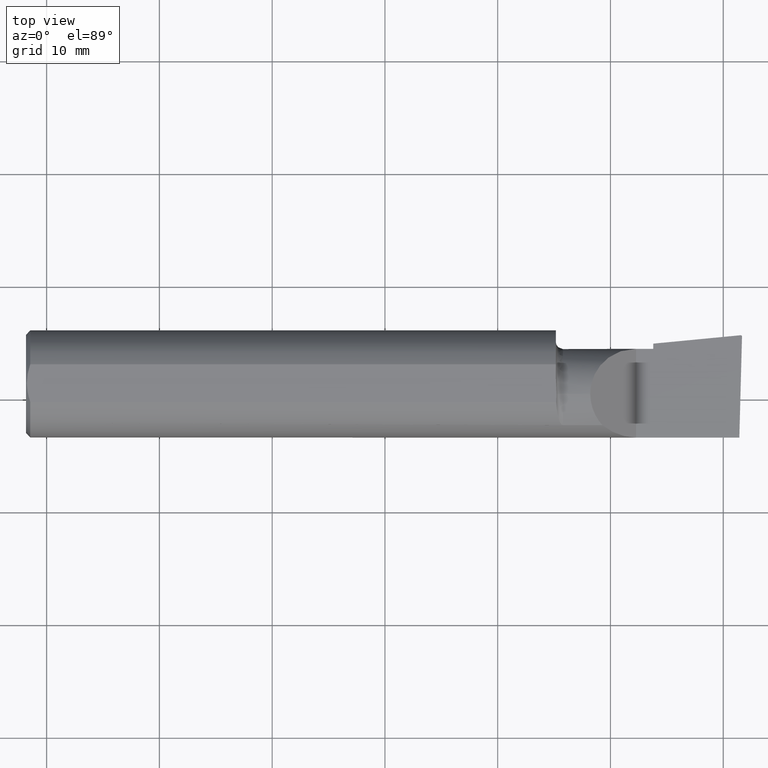
[diagram: clean part render]
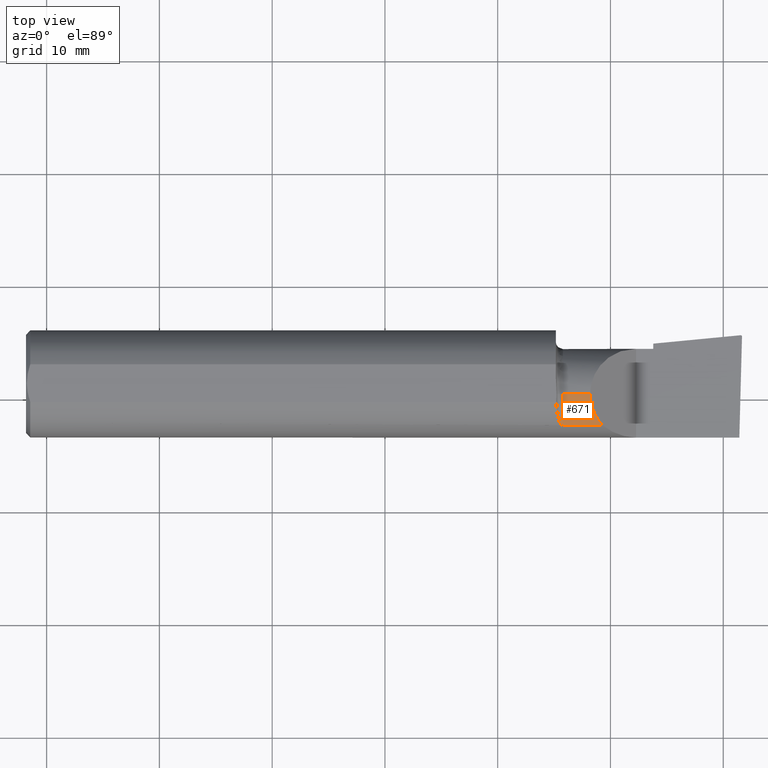
[diagram: same view with one face highlighted and labeled with its STEP entity id]
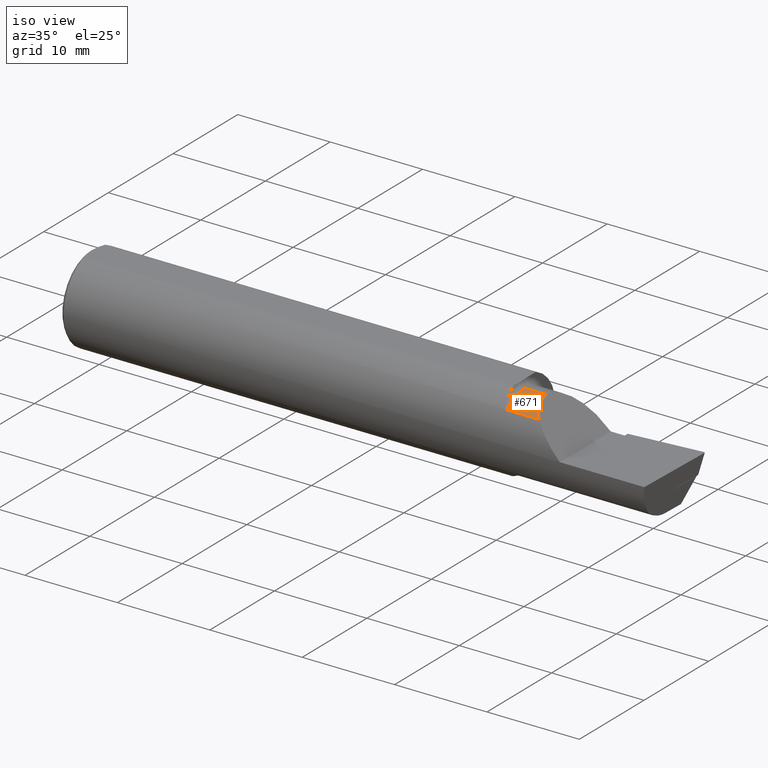
[diagram: same view with one face highlighted and labeled with its STEP entity id]
A machine part, top view. The second image highlights one B-rep face of the part: STEP entity #671.
A second angle (iso view) of the same face is appended — the face is thin or edge-on in the first view.
In plain terms, the highlighted cylindrical surface (partial cylindrical patch) has radius 4.064 mm, axis along (-1, -0, -0).
Its self-contained STEP definition (entity closure, byte-faithful):
#9 = CARTESIAN_POINT ( 'NONE',  ( 1.875000000000000000, -0.1458506693440427548, 0.1175908361731248797 ) ) ;
#26 = CARTESIAN_POINT ( 'NONE',  ( 1.850000000000000311, -0.03734999999999999432, 0.000000000000000000 ) ) ;
#66 = EDGE_CURVE ( 'NONE', #854, #476, #115, .T. ) ;
#115 = LINE ( 'NONE', #778, #901 ) ;
#150 = ORIENTED_EDGE ( 'NONE', *, *, #416, .T. ) ;
#187 = DIRECTION ( 'NONE',  ( -1.000000000000000000, -0.000000000000000000, -0.000000000000000000 ) ) ;
#261 = VECTOR ( 'NONE', #187, 39.37007874015748143 ) ;
#288 = CARTESIAN_POINT ( 'NONE',  ( 1.984864068081112043, -0.1159436613722076015, 0.1451859319188883446 ) ) ;
#328 = AXIS2_PLACEMENT_3D ( 'NONE', #654, #648, #1037 ) ;
#336 = EDGE_CURVE ( 'NONE', #1133, #854, #1165, .T. ) ;
#416 = EDGE_CURVE ( 'NONE', #1205, #1133, #572, .T. ) ;
#446 = ORIENTED_EDGE ( 'NONE', *, *, #66, .T. ) ;
#476 = VERTEX_POINT ( 'NONE', #884 ) ;
#481 = CARTESIAN_POINT ( 'NONE',  ( 1.970050000000000523, -0.07804297771170487508, 0.1600000000000000033 ) ) ;
#501 = DIRECTION ( 'NONE',  ( 1.000000000000000000, 0.000000000000000000, 0.000000000000000000 ) ) ;
#521 = ORIENTED_EDGE ( 'NONE', *, *, #336, .T. ) ;
#536 = CARTESIAN_POINT ( 'NONE',  ( 1.875000000000000000, -0.03734999999999999432, 0.1600000000000000033 ) ) ;
#572 = LINE ( 'NONE', #672, #261 ) ;
#648 = DIRECTION ( 'NONE',  ( 1.000000000000000000, 0.000000000000000000, 0.000000000000000000 ) ) ;
#654 = CARTESIAN_POINT ( 'NONE',  ( 1.875000000000000000, -0.03734999999999999432, 0.000000000000000000 ) ) ;
#671 = ADVANCED_FACE ( 'NONE', ( #891 ), #1006, .T. ) ;
#672 = CARTESIAN_POINT ( 'NONE',  ( 1.850000000000000311, -0.03734999999999999432, 0.1600000000000000033 ) ) ;
#750 = CARTESIAN_POINT ( 'NONE',  ( 1.970050000000000301, -0.03734999999999999432, 0.1600000000000000033 ) ) ;
#778 = CARTESIAN_POINT ( 'NONE',  ( 2.020000000000000462, -0.1458506693440427548, 0.1175908361731248797 ) ) ;
#793 = DIRECTION ( 'NONE',  ( -1.000000000000000000, -0.000000000000000000, -0.000000000000000000 ) ) ;
#851 = CARTESIAN_POINT ( 'NONE',  ( 1.970050000000000301, -0.03734999999999999432, 0.1600000000000000033 ) ) ;
#854 = VERTEX_POINT ( 'NONE', #9 ) ;
#884 = CARTESIAN_POINT ( 'NONE',  ( 2.012459163826875397, -0.1458506693440431157, 0.1175908361731245327 ) ) ;
#889 =( BOUNDED_CURVE ( )  B_SPLINE_CURVE ( 3, ( #851, #481, #288, #1255 ),
 .UNSPECIFIED., .F., .F. ) 
 B_SPLINE_CURVE_WITH_KNOTS ( ( 4, 4 ),
 ( 0.000000000000000000, 0.7452141083878209837 ),
 .UNSPECIFIED. ) 
 CURVE ( )  GEOMETRIC_REPRESENTATION_ITEM ( )  RATIONAL_B_SPLINE_CURVE ( ( 1.000000000000000000, 0.9542542848386182941, 0.9542542848386182941, 1.000000000000000000 ) ) 
 REPRESENTATION_ITEM ( '' )  );
#891 = FACE_OUTER_BOUND ( 'NONE', #973, .T. ) ;
#901 = VECTOR ( 'NONE', #501, 39.37007874015748143 ) ;
#951 = ORIENTED_EDGE ( 'NONE', *, *, #1229, .F. ) ;
#973 = EDGE_LOOP ( 'NONE', ( #951, #150, #521, #446 ) ) ;
#1006 = CYLINDRICAL_SURFACE ( 'NONE', #1190, 0.1600000000000000033 ) ;
#1037 = DIRECTION ( 'NONE',  ( 0.000000000000000000, 0.000000000000000000, -1.000000000000000000 ) ) ;
#1133 = VERTEX_POINT ( 'NONE', #536 ) ;
#1165 = CIRCLE ( 'NONE', #328, 0.1600000000000000033 ) ;
#1185 = DIRECTION ( 'NONE',  ( 0.000000000000000000, 0.000000000000000000, 1.000000000000000000 ) ) ;
#1190 = AXIS2_PLACEMENT_3D ( 'NONE', #26, #793, #1185 ) ;
#1205 = VERTEX_POINT ( 'NONE', #750 ) ;
#1229 = EDGE_CURVE ( 'NONE', #1205, #476, #889, .T. ) ;
#1255 = CARTESIAN_POINT ( 'NONE',  ( 2.012459163826875397, -0.1458506693440431157, 0.1175908361731245327 ) ) ;